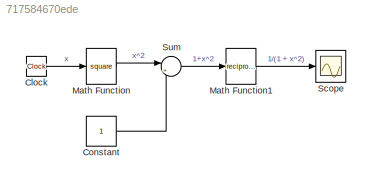
MODEL slx_717584670ede
KIND model
BLOCK [Clock] Clock
BLOCK [Constant] Constant
BLOCK [Math] Math Function
  Operator = square
  OutputSignalType = real
  Ports = [1, 1]
BLOCK [Math] Math Function1
  Operator = reciprocal
  OutputSignalType = real
  Ports = [1, 1]
BLOCK [Scope] Scope
  DataFormat = StructureWithTime
  Floating = off
  LegendLocations = 0.56739      0.7636     0.33951    0.085077
  NumInputPorts = 1
  Ports = [1]
  SampleTime = 0
  ShowLegends = on
BLOCK [Sum] Sum
  IconShape = round
  InputSameDT = off
  Inputs = |++
  OutDataTypeStr = Inherit: Inherit via internal rule
  Ports = [2, 1]
  SaturateOnIntegerOverflow = off
LINE Clock:1 -> Math Function:1
LINE Constant:1 -> Sum:2
LINE Math Function1:1 -> Scope:1
LINE Math Function:1 -> Sum:1
LINE Sum:1 -> Math Function1:1
